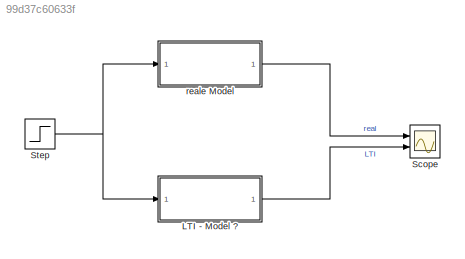
MODEL slx_99d37c60633f
KIND model
CONFIG AbsTol = auto
CONFIG FixedStep = 0.0001
CONFIG MaxStep = auto
CONFIG MinStep = auto
CONFIG RelTol = 1e-3
CONFIG SampleTimeConstraint = Unconstrained
CONFIG Solver = FixedStepAuto
CONFIG SolverMode = Auto
CONFIG SolverName = FixedStepAuto
CONFIG StartTime = 0.0
CONFIG StopTime = 0.2
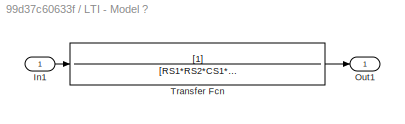
BLOCK [SubSystem] LTI - Model ?
  Ports = [1, 1]
  RequestExecContextInheritance = off
  Variant = off
BLOCK [Inport] LTI - Model ?/In1
  IconDisplay = Port number
BLOCK [Outport] LTI - Model ?/Out1
  IconDisplay = Port number
BLOCK [TransferFcn] LTI - Model ?/Transfer Fcn
  Denominator = [RS1*RS2*CS1*CS2 CS2*(RS2+RS1) 1]
BLOCK [Scope] Scope
  NumInputPorts = 2
  Ports = [2]
  ScopeSpecificationString = Simulink.scopes.TimeScopeBlockCfg('CurrentConfiguration', extmgr.ConfigurationSet(extmgr.Configuration('Core','General UI',true),extmgr.Configuration('Core','Source UI',true),extmgr.Configuration('Sources','WiredSimulink',true,'DataLoggingLimitDataPoints',true,'DataLoggingSaveFormat','Array','DataLoggingDecimation','1','DataLoggingDecimateData',true),extmgr.Configuration('Visuals','Time Domain',tr...<+2186ch>
BLOCK [Step] Step
  After = Ue
  SampleTime = 0
  Time = 0.01
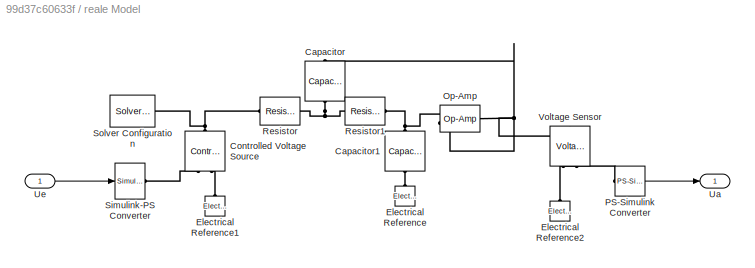
BLOCK [SubSystem] reale Model
  Ports = [1, 1]
  RequestExecContextInheritance = off
  Variant = off
BLOCK [Reference] reale Model/Capacitor  REF=fl_lib/Electrical/Electrical Elements/Capacitor
  Ports = [0, 0, 0, 0, 0, 1, 1]
  SourceBlock = fl_lib/Electrical/Electrical Elements/Capacitor
  SourceType = Capacitor
BLOCK [Reference] reale Model/Capacitor1  REF=fl_lib/Electrical/Electrical Elements/Capacitor
  Ports = [0, 0, 0, 0, 0, 1, 1]
  SourceBlock = fl_lib/Electrical/Electrical Elements/Capacitor
  SourceType = Capacitor
BLOCK [Reference] reale Model/Controlled Voltage Source  REF=fl_lib/Electrical/Electrical Sources/Controlled Voltage
Source
  Ports = [0, 0, 0, 0, 0, 1, 2]
  SourceBlock = fl_lib/Electrical/Electrical Sources/Controlled Voltage\nSource
  SourceType = Controlled Voltage\nSource
BLOCK [Reference] reale Model/Electrical Reference  REF=fl_lib/Electrical/Electrical Elements/Electrical Reference
  Ports = [0, 0, 0, 0, 0, 1]
  SourceBlock = fl_lib/Electrical/Electrical Elements/Electrical Reference
  SourceType = Electrical Reference
BLOCK [Reference] reale Model/Electrical Reference1  REF=fl_lib/Electrical/Electrical Elements/Electrical Reference
  Ports = [0, 0, 0, 0, 0, 1]
  SourceBlock = fl_lib/Electrical/Electrical Elements/Electrical Reference
  SourceType = Electrical Reference
BLOCK [Reference] reale Model/Electrical Reference2  REF=fl_lib/Electrical/Electrical Elements/Electrical Reference
  Ports = [0, 0, 0, 0, 0, 1]
  SourceBlock = fl_lib/Electrical/Electrical Elements/Electrical Reference
  SourceType = Electrical Reference
BLOCK [Reference] reale Model/Op-Amp  REF=fl_lib/Electrical/Electrical Elements/Op-Amp
  Ports = [0, 0, 0, 0, 0, 2, 1]
  SourceBlock = fl_lib/Electrical/Electrical Elements/Op-Amp
  SourceType = Op-Amp
BLOCK [Reference] reale Model/PS-Simulink Converter  REF=nesl_utility/PS-Simulink
Converter
  Ports = [0, 1, 0, 0, 0, 1]
  SourceBlock = nesl_utility/PS-Simulink\nConverter
  SourceType = PS-Simulink\nConverter
BLOCK [Reference] reale Model/Resistor  REF=fl_lib/Electrical/Electrical Elements/Resistor
  Ports = [0, 0, 0, 0, 0, 1, 1]
  SourceBlock = fl_lib/Electrical/Electrical Elements/Resistor
  SourceType = Resistor
BLOCK [Reference] reale Model/Resistor1  REF=fl_lib/Electrical/Electrical Elements/Resistor
  Ports = [0, 0, 0, 0, 0, 1, 1]
  SourceBlock = fl_lib/Electrical/Electrical Elements/Resistor
  SourceType = Resistor
BLOCK [Reference] reale Model/Simulink-PS Converter  REF=nesl_utility/Simulink-PS
Converter
  Ports = [1, 0, 0, 0, 0, 0, 1]
  SourceBlock = nesl_utility/Simulink-PS\nConverter
  SourceType = Simulink-PS\nConverter
BLOCK [Reference] reale Model/Solver Configuration  REF=nesl_utility/Solver
Configuration
  Ports = [0, 0, 0, 0, 0, 0, 1]
  SourceBlock = nesl_utility/Solver\nConfiguration
  SourceType = Solver\nConfiguration
BLOCK [Outport] reale Model/Ua
  IconDisplay = Port number
BLOCK [Inport] reale Model/Ue
  IconDisplay = Port number
BLOCK [Reference] reale Model/Voltage Sensor  REF=fl_lib/Electrical/Electrical Sensors/Voltage Sensor
  Ports = [0, 0, 0, 0, 0, 1, 2]
  SourceBlock = fl_lib/Electrical/Electrical Sensors/Voltage Sensor
  SourceType = Voltage Sensor
LINE LTI - Model ?/In1:1 -> LTI - Model ?/Transfer Fcn:1
LINE LTI - Model ?/Transfer Fcn:1 -> LTI - Model ?/Out1:1
LINE LTI - Model ?:1 -> Scope:2
NET Step:1 -> LTI - Model ?:1, reale Model:1
LINE reale Model/PS-Simulink Converter:1 -> reale Model/Ua:1
LINE reale Model/Ue:1 -> reale Model/Simulink-PS Converter:1
LINE reale Model:1 -> Scope:1
PNET net1: reale Model/Capacitor1:LConn1 -- reale Model/Op-Amp:LConn1 -- reale Model/Resistor1:RConn1
PLINE reale Model/Capacitor1:RConn1 -- reale Model/Electrical Reference:LConn1
PNET net2: reale Model/Capacitor:LConn1 -- reale Model/Op-Amp:LConn2 -- reale Model/Op-Amp:RConn1 -- reale Model/Voltage Sensor:LConn1
PNET net3: reale Model/Capacitor:RConn1 -- reale Model/Resistor1:LConn1 -- reale Model/Resistor:RConn1
PNET net4: reale Model/Controlled Voltage Source:LConn1 -- reale Model/Resistor:LConn1 -- reale Model/Solver Configuration:RConn1
PLINE reale Model/Controlled Voltage Source:RConn1 -- reale Model/Simulink-PS Converter:RConn1
PLINE reale Model/Controlled Voltage Source:RConn2 -- reale Model/Electrical Reference1:LConn1
PLINE reale Model/Electrical Reference2:LConn1 -- reale Model/Voltage Sensor:RConn2
PLINE reale Model/PS-Simulink Converter:LConn1 -- reale Model/Voltage Sensor:RConn1
note: NET lines group one-source signal fan-out (src -> all destinations, sorted); 1:1 wires keep LINE; PNET lines group multi-terminal physical nets as a canonical sorted terminal list (undirected conserving connections); 2-terminal nets keep the pairwise PLINE form
